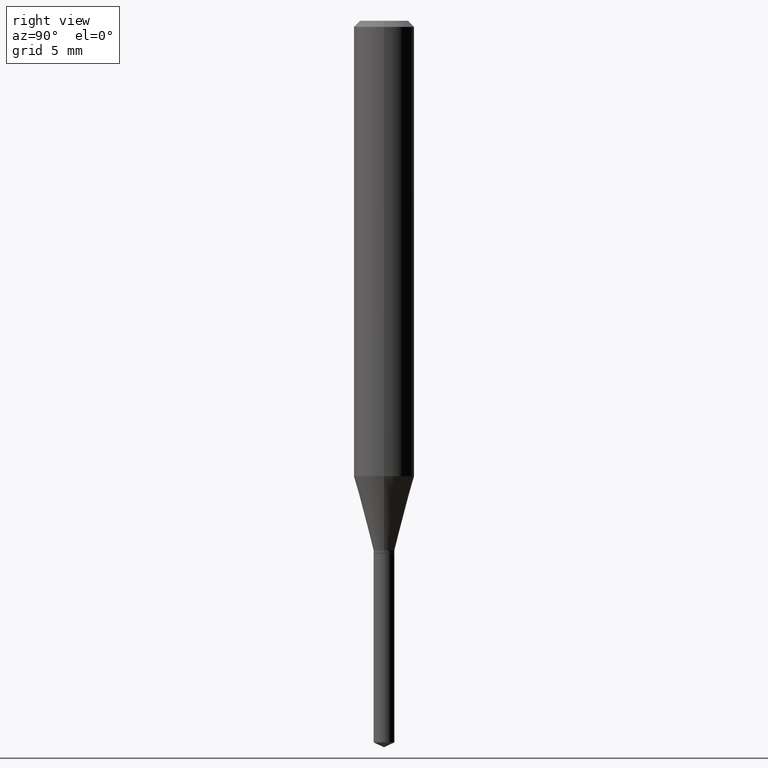
[diagram: clean part render]
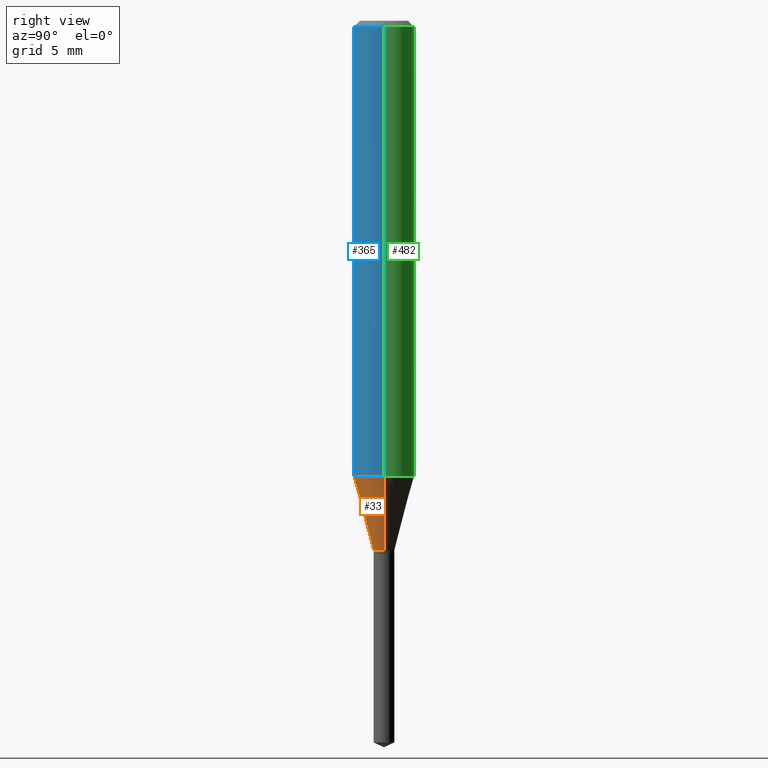
[diagram: same view with three faces highlighted in distinct colors, each labeled with its STEP entity id]
A machine part, right view with three faces highlighted in distinct colors.
Their STEP definitions:

[orange] entity #33 — the highlighted conical surface has half-angle 15 deg.
#8 = CARTESIAN_POINT ( 'NONE',  ( 0.02150000000000000175, -3.968068541595235384E-15, -1.093500000000000139 ) ) ;
#14 = EDGE_CURVE ( 'NONE', #439, #485, #95, .T. ) ;
#33 = ADVANCED_FACE ( 'NONE', ( #479 ), #276, .T. ) ;
#36 = LINE ( 'NONE', #187, #480 ) ;
#73 = DIRECTION ( 'NONE',  ( 1.000000000000000000, -6.982962677686265133E-15, 0.000000000000000000 ) ) ;
#95 = CIRCLE ( 'NONE', #322, 0.06250000000000009714 ) ;
#112 = AXIS2_PLACEMENT_3D ( 'NONE', #265, #380, #113 ) ;
#113 = DIRECTION ( 'NONE',  ( 1.000000000000000000, -6.982962677686265133E-15, 0.000000000000000000 ) ) ;
#115 = EDGE_CURVE ( 'NONE', #211, #439, #36, .T. ) ;
#125 = EDGE_CURVE ( 'NONE', #211, #238, #222, .T. ) ;
#135 = CARTESIAN_POINT ( 'NONE',  ( -0.06250000000000009714, -2.839599818415026848E-15, -0.9404859168896763100 ) ) ;
#142 = DIRECTION ( 'NONE',  ( 1.000000000000000000, -6.982962677686267499E-15, 0.000000000000000000 ) ) ;
#145 = DIRECTION ( 'NONE',  ( -2.445468806185136597E-29, 3.491481338843145583E-15, 1.000000000000000000 ) ) ;
#149 = DIRECTION ( 'NONE',  ( -0.2588190451025214611, 5.211531920934551042E-15, 0.9659258262890682012 ) ) ;
#172 = ORIENTED_EDGE ( 'NONE', *, *, #263, .T. ) ;
#174 = AXIS2_PLACEMENT_3D ( 'NONE', #297, #299, #73 ) ;
#187 = CARTESIAN_POINT ( 'NONE',  ( -0.02150000000000000175, -3.665168155836558485E-15, -1.093500000000000139 ) ) ;
#194 = CARTESIAN_POINT ( 'NONE',  ( -0.02150000000000000175, -3.675642599853087506E-15, -1.093500000000000139 ) ) ;
#211 = VERTEX_POINT ( 'NONE', #194 ) ;
#216 = ORIENTED_EDGE ( 'NONE', *, *, #125, .T. ) ;
#222 = CIRCLE ( 'NONE', #174, 0.02150000000000000175 ) ;
#238 = VERTEX_POINT ( 'NONE', #385 ) ;
#263 = EDGE_CURVE ( 'NONE', #238, #485, #431, .T. ) ;
#265 = CARTESIAN_POINT ( 'NONE',  ( 2.674120139563447313E-29, -3.817934844024980555E-15, -1.093500000000000139 ) ) ;
#272 = DIRECTION ( 'NONE',  ( 0.2588190451025214611, 1.565188264969621573E-15, 0.9659258262890682012 ) ) ;
#276 = CONICAL_SURFACE ( 'NONE', #112, 0.02150000000000000175, 0.2617993877991501295 ) ;
#297 = CARTESIAN_POINT ( 'NONE',  ( 2.674120139563447313E-29, -3.817934844024980555E-15, -1.093500000000000139 ) ) ;
#299 = DIRECTION ( 'NONE',  ( -2.445468806185136597E-29, 3.491481338843145583E-15, 1.000000000000000000 ) ) ;
#310 = ORIENTED_EDGE ( 'NONE', *, *, #115, .F. ) ;
#322 = AXIS2_PLACEMENT_3D ( 'NONE', #445, #145, #142 ) ;
#380 = DIRECTION ( 'NONE',  ( -2.445468806185136597E-29, 3.491481338843145583E-15, 1.000000000000000000 ) ) ;
#385 = CARTESIAN_POINT ( 'NONE',  ( 0.02150000000000000175, -3.968068541595235384E-15, -1.093500000000000139 ) ) ;
#398 = ORIENTED_EDGE ( 'NONE', *, *, #14, .F. ) ;
#426 = EDGE_LOOP ( 'NONE', ( #310, #216, #172, #398 ) ) ;
#431 = LINE ( 'NONE', #8, #458 ) ;
#437 = CARTESIAN_POINT ( 'NONE',  ( 0.06250000000000009714, -3.720124195620482711E-15, -0.9404859168896763100 ) ) ;
#439 = VERTEX_POINT ( 'NONE', #135 ) ;
#445 = CARTESIAN_POINT ( 'NONE',  ( 2.299928972410130488E-29, -3.283689028265090253E-15, -0.9404859168896763100 ) ) ;
#458 = VECTOR ( 'NONE', #272, 39.37007874015747433 ) ;
#479 = FACE_OUTER_BOUND ( 'NONE', #426, .T. ) ;
#480 = VECTOR ( 'NONE', #149, 39.37007874015747433 ) ;
#485 = VERTEX_POINT ( 'NONE', #437 ) ;

[blue] entity #365 — the highlighted cylindrical surface (edge-blend (fillet) strip) has radius 1.5875 mm, axis along (-0, 0, 1).
#12 = CARTESIAN_POINT ( 'NONE',  ( 0.000000000000000000, 0.000000000000000000, 0.000000000000000000 ) ) ;
#14 = EDGE_CURVE ( 'NONE', #439, #485, #95, .T. ) ;
#51 = CYLINDRICAL_SURFACE ( 'NONE', #332, 0.06250000000000005551 ) ;
#75 = EDGE_CURVE ( 'NONE', #485, #290, #108, .T. ) ;
#86 = CARTESIAN_POINT ( 'NONE',  ( 0.06250000000000000000, -4.800786840909312308E-16, -0.01250000000000008049 ) ) ;
#95 = CIRCLE ( 'NONE', #322, 0.06250000000000009714 ) ;
#102 = ORIENTED_EDGE ( 'NONE', *, *, #312, .F. ) ;
#108 = LINE ( 'NONE', #109, #410 ) ;
#109 = CARTESIAN_POINT ( 'NONE',  ( 0.06250000000000005551, -4.364351673553920638E-16, 3.047610484872462323E-30 ) ) ;
#110 = CARTESIAN_POINT ( 'NONE',  ( -0.06250000000000005551, 4.440892098500630106E-16, -3.074334431409318916E-30 ) ) ;
#127 = CARTESIAN_POINT ( 'NONE',  ( -0.06250000000000000000, -1.219577062650251305E-15, -0.01250000000000008049 ) ) ;
#135 = CARTESIAN_POINT ( 'NONE',  ( -0.06250000000000009714, -2.839599818415026848E-15, -0.9404859168896763100 ) ) ;
#142 = DIRECTION ( 'NONE',  ( 1.000000000000000000, -6.982962677686267499E-15, 0.000000000000000000 ) ) ;
#143 = LINE ( 'NONE', #110, #428 ) ;
#145 = DIRECTION ( 'NONE',  ( -2.445468806185136597E-29, 3.491481338843145583E-15, 1.000000000000000000 ) ) ;
#165 = DIRECTION ( 'NONE',  ( -2.445468806185136597E-29, 3.491481338843145583E-15, 1.000000000000000000 ) ) ;
#188 = EDGE_CURVE ( 'NONE', #439, #363, #143, .T. ) ;
#207 = EDGE_LOOP ( 'NONE', ( #394, #361, #324, #102 ) ) ;
#223 = DIRECTION ( 'NONE',  ( -2.445468806185136877E-29, 3.491481338843145188E-15, 1.000000000000000000 ) ) ;
#277 = FACE_OUTER_BOUND ( 'NONE', #207, .T. ) ;
#290 = VERTEX_POINT ( 'NONE', #86 ) ;
#312 = EDGE_CURVE ( 'NONE', #363, #290, #475, .T. ) ;
#322 = AXIS2_PLACEMENT_3D ( 'NONE', #445, #145, #142 ) ;
#324 = ORIENTED_EDGE ( 'NONE', *, *, #75, .T. ) ;
#332 = AXIS2_PLACEMENT_3D ( 'NONE', #12, #165, #397 ) ;
#351 = CARTESIAN_POINT ( 'NONE',  ( 3.056836007731440539E-31, -4.364351673553960451E-17, -0.01250000000000008049 ) ) ;
#361 = ORIENTED_EDGE ( 'NONE', *, *, #14, .T. ) ;
#363 = VERTEX_POINT ( 'NONE', #127 ) ;
#365 = ADVANCED_FACE ( 'NONE', ( #277 ), #51, .T. ) ;
#394 = ORIENTED_EDGE ( 'NONE', *, *, #188, .F. ) ;
#395 = DIRECTION ( 'NONE',  ( 1.000000000000000000, -6.982962677686266711E-15, 0.000000000000000000 ) ) ;
#397 = DIRECTION ( 'NONE',  ( 1.000000000000000000, -6.982962677686266711E-15, 4.876176775795935232E-29 ) ) ;
#410 = VECTOR ( 'NONE', #223, 39.37007874015748143 ) ;
#428 = VECTOR ( 'NONE', #449, 39.37007874015748143 ) ;
#437 = CARTESIAN_POINT ( 'NONE',  ( 0.06250000000000009714, -3.720124195620482711E-15, -0.9404859168896763100 ) ) ;
#439 = VERTEX_POINT ( 'NONE', #135 ) ;
#445 = CARTESIAN_POINT ( 'NONE',  ( 2.299928972410130488E-29, -3.283689028265090253E-15, -0.9404859168896763100 ) ) ;
#449 = DIRECTION ( 'NONE',  ( -2.445468806185136877E-29, 3.491481338843145188E-15, 1.000000000000000000 ) ) ;
#462 = DIRECTION ( 'NONE',  ( -2.445468806185136597E-29, 3.491481338843145583E-15, 1.000000000000000000 ) ) ;
#466 = AXIS2_PLACEMENT_3D ( 'NONE', #351, #462, #395 ) ;
#475 = CIRCLE ( 'NONE', #466, 0.06250000000000000000 ) ;
#485 = VERTEX_POINT ( 'NONE', #437 ) ;

[green] entity #482 — the highlighted cylindrical surface (edge-blend (fillet) strip) has radius 1.5875 mm, axis along (-0, 0, 1).
#21 = EDGE_LOOP ( 'NONE', ( #44, #201, #318, #96 ) ) ;
#32 = AXIS2_PLACEMENT_3D ( 'NONE', #70, #133, #282 ) ;
#44 = ORIENTED_EDGE ( 'NONE', *, *, #63, .T. ) ;
#63 = EDGE_CURVE ( 'NONE', #485, #439, #488, .T. ) ;
#70 = CARTESIAN_POINT ( 'NONE',  ( 3.056836007731440539E-31, -4.364351673553960451E-17, -0.01250000000000008049 ) ) ;
#75 = EDGE_CURVE ( 'NONE', #485, #290, #108, .T. ) ;
#79 = DIRECTION ( 'NONE',  ( 1.000000000000000000, -6.982962677686267499E-15, 0.000000000000000000 ) ) ;
#86 = CARTESIAN_POINT ( 'NONE',  ( 0.06250000000000000000, -4.800786840909312308E-16, -0.01250000000000008049 ) ) ;
#96 = ORIENTED_EDGE ( 'NONE', *, *, #75, .F. ) ;
#108 = LINE ( 'NONE', #109, #410 ) ;
#109 = CARTESIAN_POINT ( 'NONE',  ( 0.06250000000000005551, -4.364351673553920638E-16, 3.047610484872462323E-30 ) ) ;
#110 = CARTESIAN_POINT ( 'NONE',  ( -0.06250000000000005551, 4.440892098500630106E-16, -3.074334431409318916E-30 ) ) ;
#127 = CARTESIAN_POINT ( 'NONE',  ( -0.06250000000000000000, -1.219577062650251305E-15, -0.01250000000000008049 ) ) ;
#133 = DIRECTION ( 'NONE',  ( -2.445468806185136597E-29, 3.491481338843145583E-15, 1.000000000000000000 ) ) ;
#135 = CARTESIAN_POINT ( 'NONE',  ( -0.06250000000000009714, -2.839599818415026848E-15, -0.9404859168896763100 ) ) ;
#141 = CARTESIAN_POINT ( 'NONE',  ( 2.299928972410130488E-29, -3.283689028265090253E-15, -0.9404859168896763100 ) ) ;
#143 = LINE ( 'NONE', #110, #428 ) ;
#188 = EDGE_CURVE ( 'NONE', #439, #363, #143, .T. ) ;
#201 = ORIENTED_EDGE ( 'NONE', *, *, #188, .T. ) ;
#223 = DIRECTION ( 'NONE',  ( -2.445468806185136877E-29, 3.491481338843145188E-15, 1.000000000000000000 ) ) ;
#241 = CIRCLE ( 'NONE', #32, 0.06250000000000000000 ) ;
#246 = CARTESIAN_POINT ( 'NONE',  ( 0.000000000000000000, 0.000000000000000000, 0.000000000000000000 ) ) ;
#282 = DIRECTION ( 'NONE',  ( 1.000000000000000000, -6.982962677686266711E-15, 0.000000000000000000 ) ) ;
#284 = FACE_OUTER_BOUND ( 'NONE', #21, .T. ) ;
#285 = AXIS2_PLACEMENT_3D ( 'NONE', #141, #447, #79 ) ;
#290 = VERTEX_POINT ( 'NONE', #86 ) ;
#318 = ORIENTED_EDGE ( 'NONE', *, *, #469, .F. ) ;
#362 = CYLINDRICAL_SURFACE ( 'NONE', #392, 0.06250000000000005551 ) ;
#363 = VERTEX_POINT ( 'NONE', #127 ) ;
#364 = DIRECTION ( 'NONE',  ( 1.000000000000000000, -6.982962677686266711E-15, 4.876176775795935232E-29 ) ) ;
#392 = AXIS2_PLACEMENT_3D ( 'NONE', #246, #400, #364 ) ;
#400 = DIRECTION ( 'NONE',  ( -2.445468806185136597E-29, 3.491481338843145583E-15, 1.000000000000000000 ) ) ;
#410 = VECTOR ( 'NONE', #223, 39.37007874015748143 ) ;
#428 = VECTOR ( 'NONE', #449, 39.37007874015748143 ) ;
#437 = CARTESIAN_POINT ( 'NONE',  ( 0.06250000000000009714, -3.720124195620482711E-15, -0.9404859168896763100 ) ) ;
#439 = VERTEX_POINT ( 'NONE', #135 ) ;
#447 = DIRECTION ( 'NONE',  ( -2.445468806185136597E-29, 3.491481338843145583E-15, 1.000000000000000000 ) ) ;
#449 = DIRECTION ( 'NONE',  ( -2.445468806185136877E-29, 3.491481338843145188E-15, 1.000000000000000000 ) ) ;
#469 = EDGE_CURVE ( 'NONE', #290, #363, #241, .T. ) ;
#482 = ADVANCED_FACE ( 'NONE', ( #284 ), #362, .T. ) ;
#485 = VERTEX_POINT ( 'NONE', #437 ) ;
#488 = CIRCLE ( 'NONE', #285, 0.06250000000000009714 ) ;